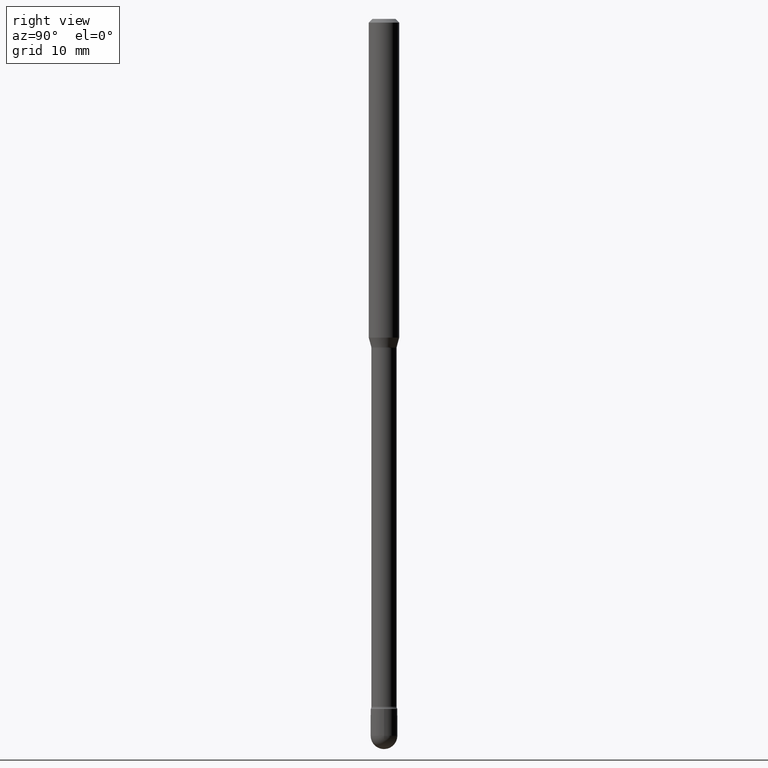
[diagram: clean part render]
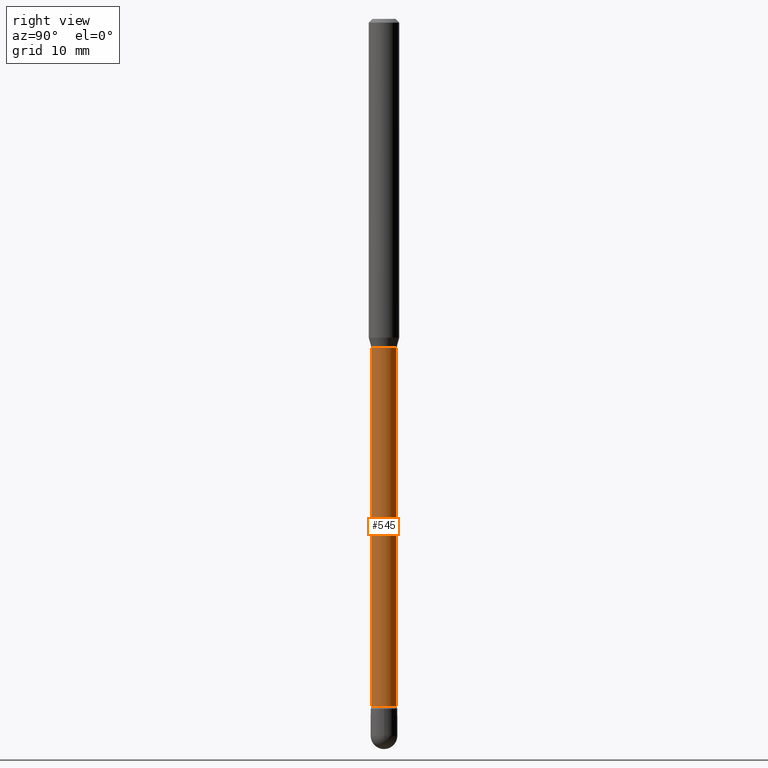
[diagram: same view with one face highlighted and labeled with its STEP entity id]
A machine part, right view. The second image highlights one B-rep face of the part: STEP entity #545.
In plain terms, the highlighted cylindrical surface (edge-blend (fillet) strip) has radius 1.3132 mm, axis along (-0, 0, 1).
Its self-contained STEP definition (entity closure, byte-faithful):
#2 = DIRECTION ( 'NONE',  ( -2.445438913098746868E-29, 3.491524147444264637E-15, 1.000000000000000000 ) ) ;
#33 = VECTOR ( 'NONE', #421, 39.37007874015748143 ) ;
#46 = DIRECTION ( 'NONE',  ( -2.445438913098746868E-29, 3.491524147444264637E-15, 1.000000000000000000 ) ) ;
#68 = CARTESIAN_POINT ( 'NONE',  ( -1.169113584055446105E-44, 1.669184350826100908E-30, 4.780733988912460139E-16 ) ) ;
#69 = DIRECTION ( 'NONE',  ( -6.982962677686265922E-15, -1.000000000000000000, 0.000000000000000000 ) ) ;
#73 = CIRCLE ( 'NONE', #120, 0.05170000000000024576 ) ;
#76 = AXIS2_PLACEMENT_3D ( 'NONE', #336, #2, #477 ) ;
#90 = CARTESIAN_POINT ( 'NONE',  ( -3.610191704363808417E-16, -0.05170000000000012780, 6.585851973141149814E-16 ) ) ;
#107 = CARTESIAN_POINT ( 'NONE',  ( 6.909864735020778379E-29, -9.865697093748834148E-15, -2.825613307291703347 ) ) ;
#120 = AXIS2_PLACEMENT_3D ( 'NONE', #107, #277, #69 ) ;
#125 = AXIS2_PLACEMENT_3D ( 'NONE', #68, #510, #558 ) ;
#148 = CARTESIAN_POINT ( 'NONE',  ( 3.673505943880415323E-16, 0.05169999999999527751, -1.351974787463811722 ) ) ;
#234 = EDGE_CURVE ( 'NONE', #386, #280, #459, .T. ) ;
#268 = ORIENTED_EDGE ( 'NONE', *, *, #334, .F. ) ;
#277 = DIRECTION ( 'NONE',  ( -2.445438913098746868E-29, 3.491524147444264637E-15, 1.000000000000000000 ) ) ;
#280 = VERTEX_POINT ( 'NONE', #148 ) ;
#286 = EDGE_CURVE ( 'NONE', #533, #386, #73, .T. ) ;
#292 = VECTOR ( 'NONE', #46, 39.37007874015748143 ) ;
#303 = CARTESIAN_POINT ( 'NONE',  ( -3.610191704363469207E-16, -0.05170000000000472135, -1.351974787463811056 ) ) ;
#307 = VERTEX_POINT ( 'NONE', #303 ) ;
#309 = ORIENTED_EDGE ( 'NONE', *, *, #286, .T. ) ;
#317 = EDGE_CURVE ( 'NONE', #307, #280, #395, .T. ) ;
#334 = EDGE_CURVE ( 'NONE', #533, #307, #340, .T. ) ;
#336 = CARTESIAN_POINT ( 'NONE',  ( 3.306171754792412151E-29, -4.720452617165725259E-15, -1.351974787463811278 ) ) ;
#338 = CARTESIAN_POINT ( 'NONE',  ( -3.610191704363126052E-16, -0.05170000000001011287, -2.825613307291703347 ) ) ;
#340 = LINE ( 'NONE', #90, #292 ) ;
#375 = FACE_OUTER_BOUND ( 'NONE', #396, .T. ) ;
#386 = VERTEX_POINT ( 'NONE', #434 ) ;
#395 = CIRCLE ( 'NONE', #76, 0.05169999999999999596 ) ;
#396 = EDGE_LOOP ( 'NONE', ( #309, #550, #503, #268 ) ) ;
#421 = DIRECTION ( 'NONE',  ( -2.445438913098746868E-29, 3.491524147444264637E-15, 1.000000000000000000 ) ) ;
#430 = CYLINDRICAL_SURFACE ( 'NONE', #125, 0.05170000000000012780 ) ;
#434 = CARTESIAN_POINT ( 'NONE',  ( 3.790745495280832746E-16, 0.05169999999999037865, -2.825613307291703347 ) ) ;
#459 = LINE ( 'NONE', #541, #33 ) ;
#477 = DIRECTION ( 'NONE',  ( -6.982962677686266711E-15, -1.000000000000000000, 5.284038672464726492E-15 ) ) ;
#503 = ORIENTED_EDGE ( 'NONE', *, *, #317, .F. ) ;
#510 = DIRECTION ( 'NONE',  ( -2.445438913098746868E-29, 3.491524147444264637E-15, 1.000000000000000000 ) ) ;
#533 = VERTEX_POINT ( 'NONE', #338 ) ;
#541 = CARTESIAN_POINT ( 'NONE',  ( 3.673505943879726548E-16, 0.05170000000000012780, 2.975616004683770958E-16 ) ) ;
#545 = ADVANCED_FACE ( 'NONE', ( #375 ), #430, .T. ) ;
#550 = ORIENTED_EDGE ( 'NONE', *, *, #234, .T. ) ;
#558 = DIRECTION ( 'NONE',  ( -6.982962677686265922E-15, -1.000000000000000000, 3.491524147444265031E-15 ) ) ;